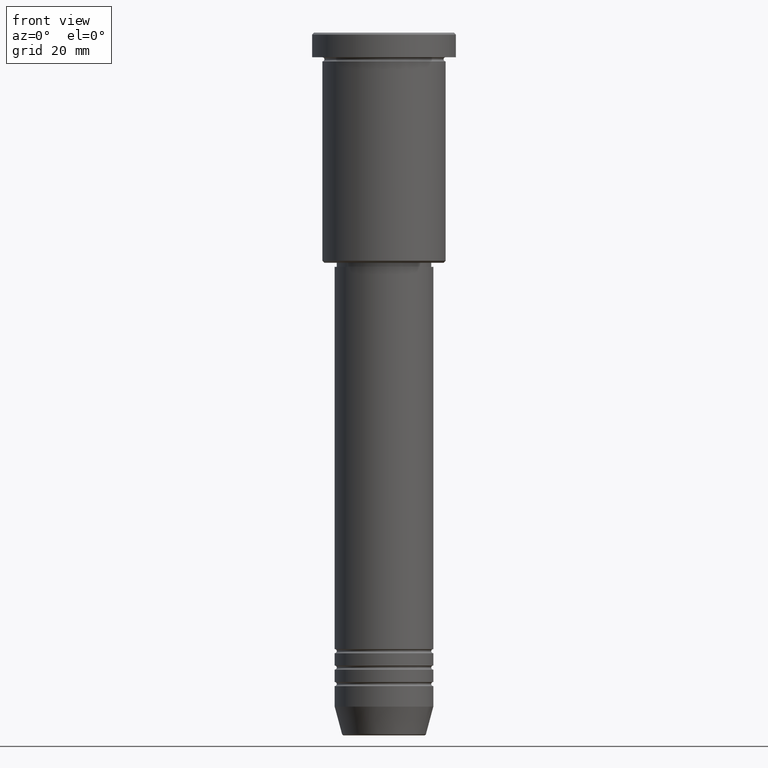
[diagram: clean part render]
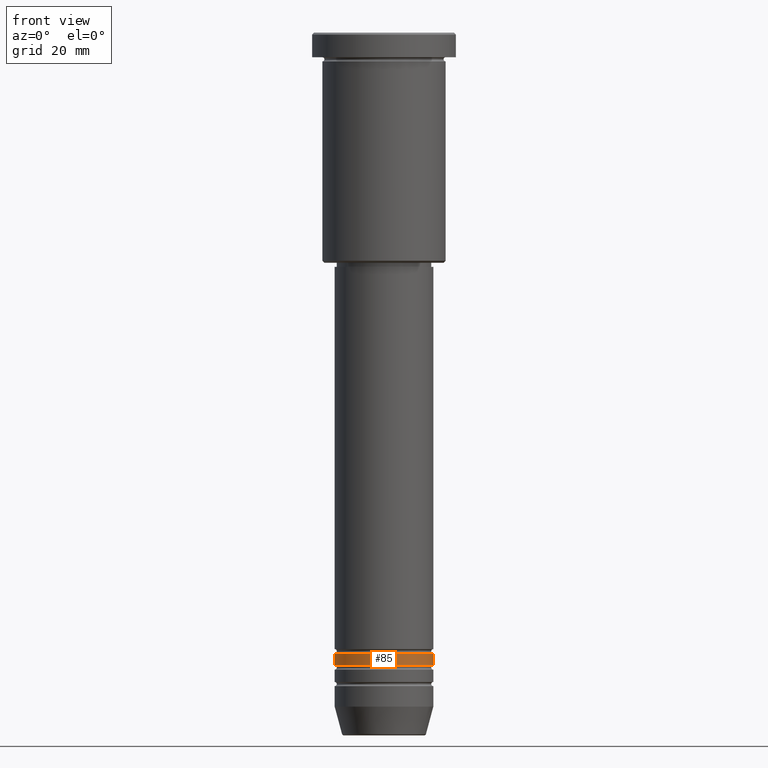
[diagram: same view with one face highlighted and labeled with its STEP entity id]
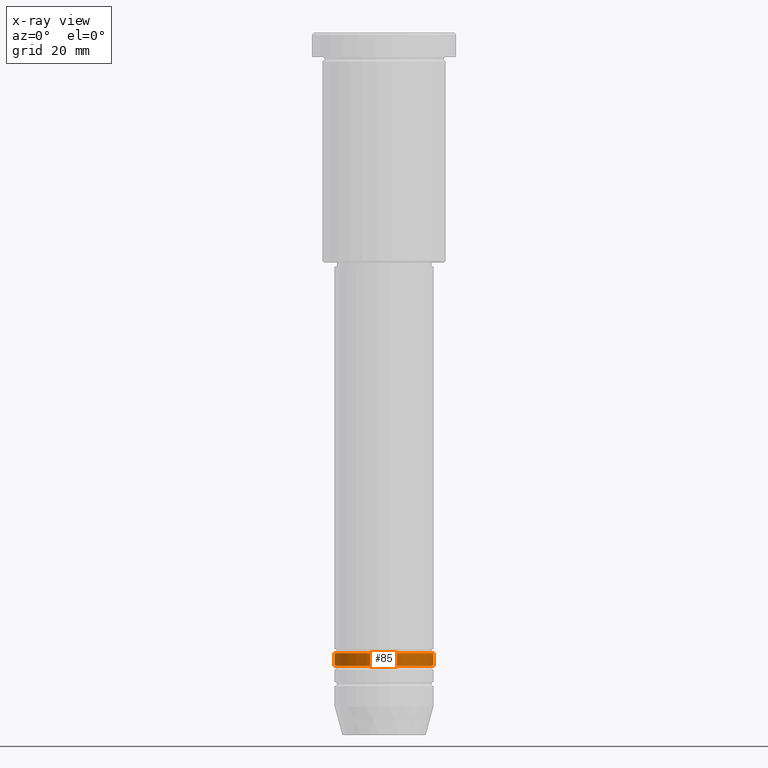
[diagram: x-ray of the same camera — body ghosted, the highlighted face saturated]
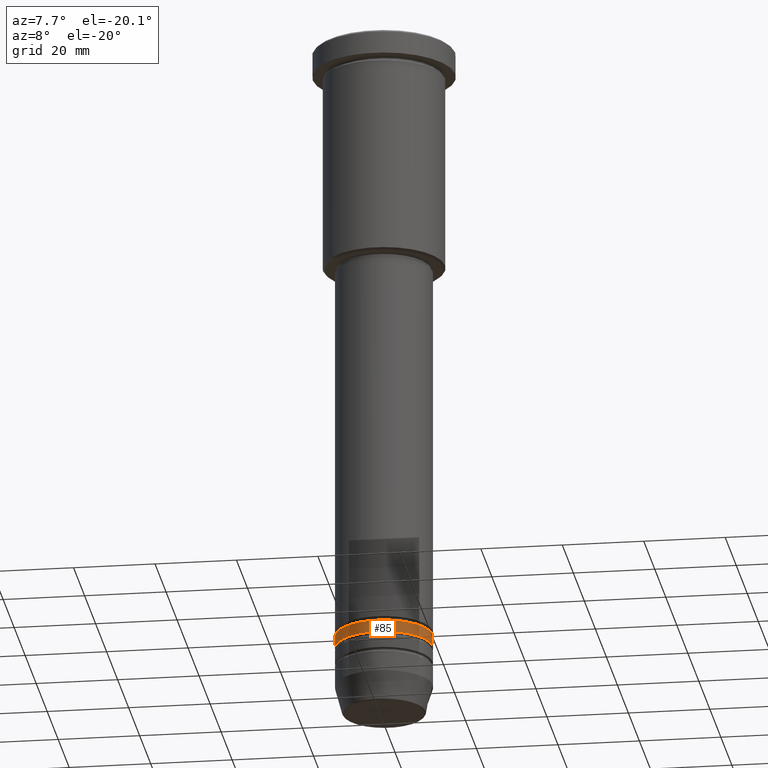
[diagram: same view with one face highlighted and labeled with its STEP entity id]
A machine part, front view. The second image highlights one B-rep face of the part: STEP entity #85.
The next image is the same camera in x-ray: the body ghosted, the highlighted face saturated — about 0% of this face is hidden behind the body in this view.
A second angle (auxiliary view) of the same face is appended — the face is thin or edge-on in the first view.
In plain terms, the highlighted cylindrical surface (partial cylindrical patch) has radius 12 mm, axis along (-0, -0, 1).
Its self-contained STEP definition (entity closure, byte-faithful):
#18 = DIRECTION ( 'NONE',  ( -0.000000000000000000, -0.000000000000000000, 1.000000000000000000 ) ) ;
#20 = ORIENTED_EDGE ( 'NONE', *, *, #102, .T. ) ;
#85 = ADVANCED_FACE ( 'NONE', ( #294 ), #108, .T. ) ;
#102 = EDGE_CURVE ( 'NONE', #796, #521, #1075, .T. ) ;
#108 = CYLINDRICAL_SURFACE ( 'NONE', #1095, 12.00000000000000178 ) ;
#144 = AXIS2_PLACEMENT_3D ( 'NONE', #864, #404, #758 ) ;
#168 = DIRECTION ( 'NONE',  ( -0.000000000000000000, -0.000000000000000000, 1.000000000000000000 ) ) ;
#201 = CARTESIAN_POINT ( 'NONE',  ( -12.00000000000000533, 1.469576158976824539E-15, -153.9999999999999147 ) ) ;
#243 = CARTESIAN_POINT ( 'NONE',  ( 0.000000000000000000, 0.000000000000000000, -150.9999999999999147 ) ) ;
#252 = CARTESIAN_POINT ( 'NONE',  ( 12.00000000000000000, 0.000000000000000000, -150.9999999999999147 ) ) ;
#286 = VECTOR ( 'NONE', #168, 1000.000000000000000 ) ;
#291 = EDGE_CURVE ( 'NONE', #796, #1121, #432, .T. ) ;
#294 = FACE_OUTER_BOUND ( 'NONE', #1165, .T. ) ;
#346 = CARTESIAN_POINT ( 'NONE',  ( -12.00000000000000178, 1.469576158976824144E-15, 0.000000000000000000 ) ) ;
#385 = DIRECTION ( 'NONE',  ( 1.000000000000000000, 0.000000000000000000, 0.000000000000000000 ) ) ;
#402 = DIRECTION ( 'NONE',  ( -0.000000000000000000, -0.000000000000000000, 1.000000000000000000 ) ) ;
#404 = DIRECTION ( 'NONE',  ( -0.000000000000000000, -0.000000000000000000, 1.000000000000000000 ) ) ;
#420 = ORIENTED_EDGE ( 'NONE', *, *, #494, .T. ) ;
#432 = LINE ( 'NONE', #346, #286 ) ;
#494 = EDGE_CURVE ( 'NONE', #521, #532, #670, .T. ) ;
#498 = VECTOR ( 'NONE', #580, 1000.000000000000000 ) ;
#521 = VERTEX_POINT ( 'NONE', #1071 ) ;
#532 = VERTEX_POINT ( 'NONE', #252 ) ;
#573 = ORIENTED_EDGE ( 'NONE', *, *, #291, .F. ) ;
#580 = DIRECTION ( 'NONE',  ( -0.000000000000000000, -0.000000000000000000, 1.000000000000000000 ) ) ;
#670 = LINE ( 'NONE', #1033, #498 ) ;
#695 = CIRCLE ( 'NONE', #867, 12.00000000000000000 ) ;
#755 = DIRECTION ( 'NONE',  ( 1.000000000000000000, 0.000000000000000000, 0.000000000000000000 ) ) ;
#758 = DIRECTION ( 'NONE',  ( 1.000000000000000000, 0.000000000000000000, 0.000000000000000000 ) ) ;
#796 = VERTEX_POINT ( 'NONE', #201 ) ;
#799 = CARTESIAN_POINT ( 'NONE',  ( -12.00000000000000000, 1.469576158976824144E-15, -150.9999999999999147 ) ) ;
#836 = CARTESIAN_POINT ( 'NONE',  ( 0.000000000000000000, 0.000000000000000000, 0.000000000000000000 ) ) ;
#838 = EDGE_CURVE ( 'NONE', #1121, #532, #695, .T. ) ;
#864 = CARTESIAN_POINT ( 'NONE',  ( 0.000000000000000000, 0.000000000000000000, -153.9999999999999147 ) ) ;
#867 = AXIS2_PLACEMENT_3D ( 'NONE', #243, #402, #755 ) ;
#914 = ORIENTED_EDGE ( 'NONE', *, *, #838, .F. ) ;
#1033 = CARTESIAN_POINT ( 'NONE',  ( 12.00000000000000178, 0.000000000000000000, 0.000000000000000000 ) ) ;
#1071 = CARTESIAN_POINT ( 'NONE',  ( 12.00000000000000355, 0.000000000000000000, -153.9999999999999147 ) ) ;
#1075 = CIRCLE ( 'NONE', #144, 12.00000000000000355 ) ;
#1095 = AXIS2_PLACEMENT_3D ( 'NONE', #836, #18, #385 ) ;
#1121 = VERTEX_POINT ( 'NONE', #799 ) ;
#1165 = EDGE_LOOP ( 'NONE', ( #573, #20, #420, #914 ) ) ;